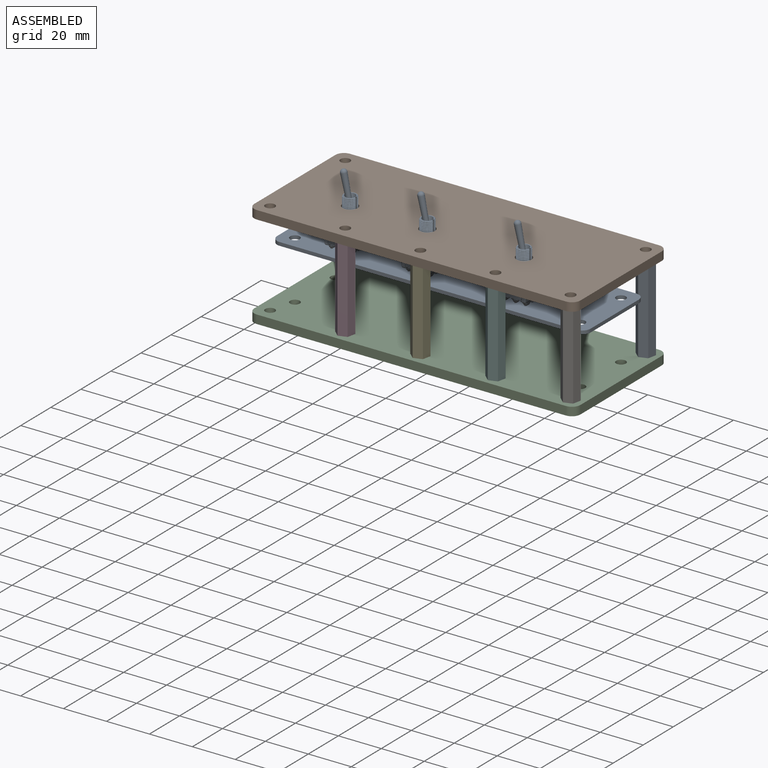
[diagram: assembled view]
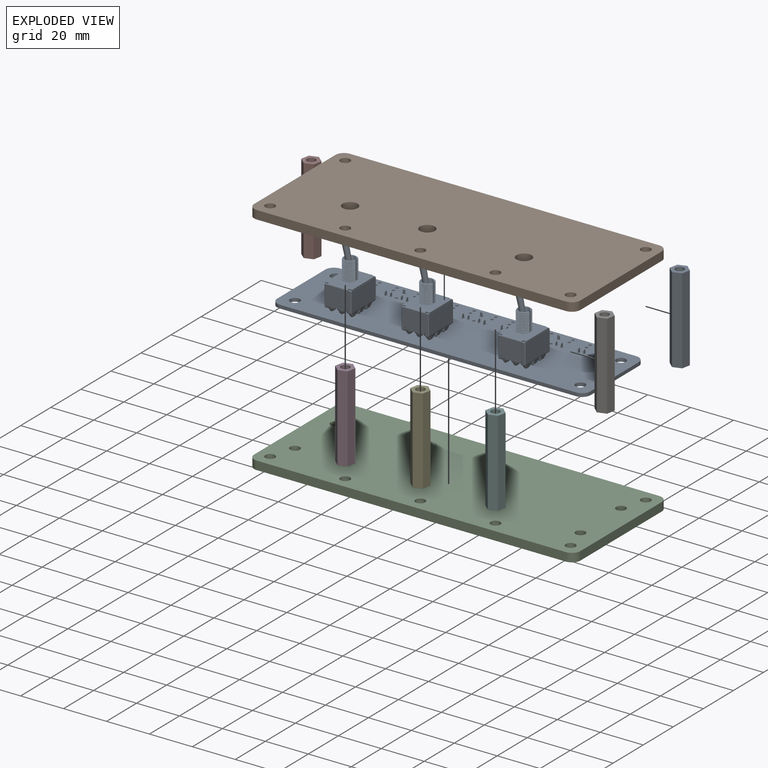
[diagram: exploded view]
GUIDED TOUR — FREECAD ASSEMBLY "Casing"

This assembly has 9 components, labeled P0..P8 below (a component is one placed body or linked part; the same part can appear more than once), held together by 0 modeled joints plus 13 derived contact edges. A joint is a constraint between two components; its type names the relative motion it leaves free:
  CONTACT — a derived adjacency edge — the two components touch in the source model (clearance under 2% of the assembly's diagonal); it is measured from the geometry, not a modeled constraint.
Axis/direction vectors are unit vectors and 'through' points are millimeter coordinates, both in the assembly's world frame.

MATES
  1. CONTACT "contact_0_1": P0 <-> P1, contact direction (0.000, 0.000, 1.000) through (28.45, 25.65, 18.52) mm (derived from contact, not a modeled constraint)
  2. CONTACT "contact_1_3": P1 <-> P3, contact direction (0.000, 0.000, -1.000) through (43.00, 6.73, 14.50) mm (derived from contact, not a modeled constraint)
  3. CONTACT "contact_1_4": P1 <-> P4, contact direction (0.000, 0.000, -1.000) through (77.48, 7.52, 14.50) mm (derived from contact, not a modeled constraint)
  4. CONTACT "contact_1_5": P1 <-> P5, contact direction (0.000, 0.000, -1.000) through (112.48, 7.52, 14.50) mm (derived from contact, not a modeled constraint)
  5. CONTACT "contact_1_6": P1 <-> P6, contact direction (1.000, 0.000, 0.000) through (148.11, 6.21, 14.50) mm (derived from contact, not a modeled constraint)
  6. CONTACT "contact_1_7": P1 <-> P7, contact direction (-1.000, 0.000, 0.000) through (7.15, 57.79, 14.50) mm (derived from contact, not a modeled constraint)
  7. CONTACT "contact_1_8": P1 <-> P8, contact direction (1.000, 0.000, 0.000) through (148.11, 56.21, 14.50) mm (derived from contact, not a modeled constraint)
  8. CONTACT "contact_2_3": P2 <-> P3, contact direction (0.000, 0.000, 1.000) through (43.00, 6.73, -25.50) mm (derived from contact, not a modeled constraint)
  9. CONTACT "contact_2_4": P2 <-> P4, contact direction (0.000, 0.000, 1.000) through (77.15, 7.79, -25.50) mm (derived from contact, not a modeled constraint)
  10. CONTACT "contact_2_5": P2 <-> P5, contact direction (0.000, 0.000, 1.000) through (112.15, 7.79, -25.50) mm (derived from contact, not a modeled constraint)
  11. CONTACT "contact_2_6": P2 <-> P6, contact direction (1.000, 0.000, 0.000) through (144.19, 4.89, -25.50) mm (derived from contact, not a modeled constraint)
  12. CONTACT "contact_2_7": P2 <-> P7, contact direction (-1.000, 0.000, 0.000) through (7.15, 57.79, -25.50) mm (derived from contact, not a modeled constraint)
  13. CONTACT "contact_2_8": P2 <-> P8, contact direction (0.000, 0.000, 1.000) through (144.19, 54.89, -25.50) mm (derived from contact, not a modeled constraint)

ASSEMBLY ORDER
  1. P0 — the base component [order verified]
  2. P1 [order verified]
  3. P8 [order verified]
  4. P7 [order verified]
  5. P6 [order verified]
  6. P5 [order verified]
  7. P4 [order verified]
  8. P3 [order verified]
  9. P2 [order verified]
Order-tag legend:
  [order verified] — this step's position reverses a verified removal order: the component was checked to insert without passing through the ones already placed.

Of the 9 components, 9 carry a construction recipe — the FreeCAD feature program (sketches with constraints, then the solid features that consume them) that regenerates the part from scratch, quoted from this document or from the linked companion document it references; the rest are supplied as boundary geometry only. The tour below walks the components in assembly order: each is shown spotlighted twice — in the assembled view, then in the exploded view, where a leader line traces a displaced component back to its assembled socket (components that stay in place when exploded have no leader line; saturated green if recipe-attached, orange if geometry-only; every other component desaturated gray) — followed by its recipe or geometry summary and the mates that hold it.
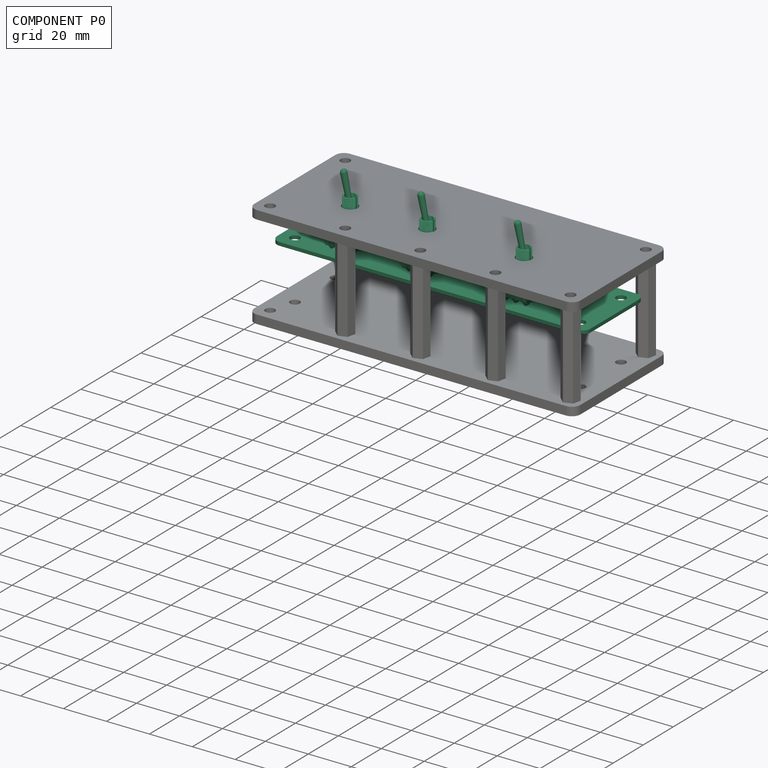
[diagram: component P0 — assembled]
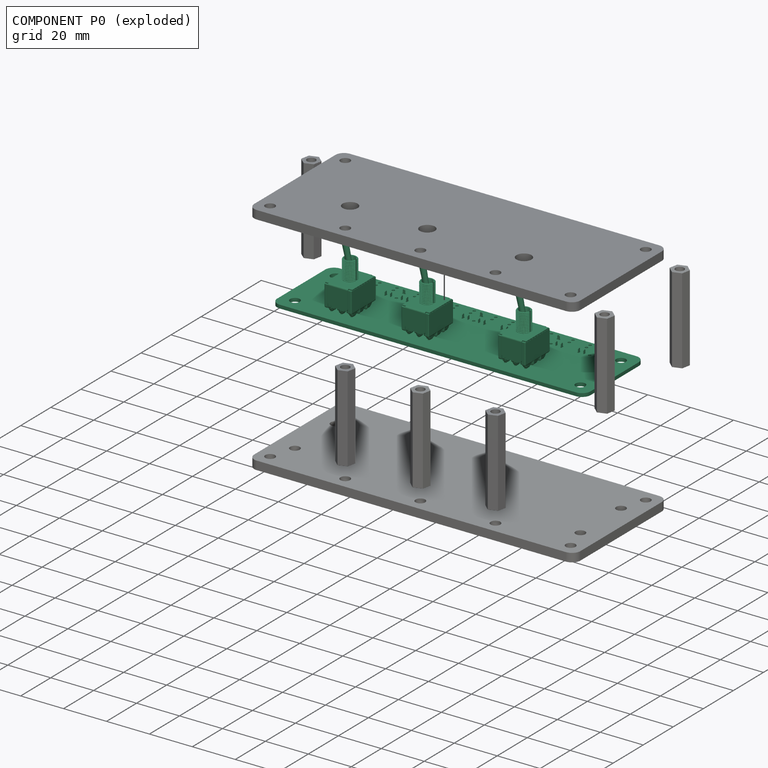
[diagram: component P0 — exploded]
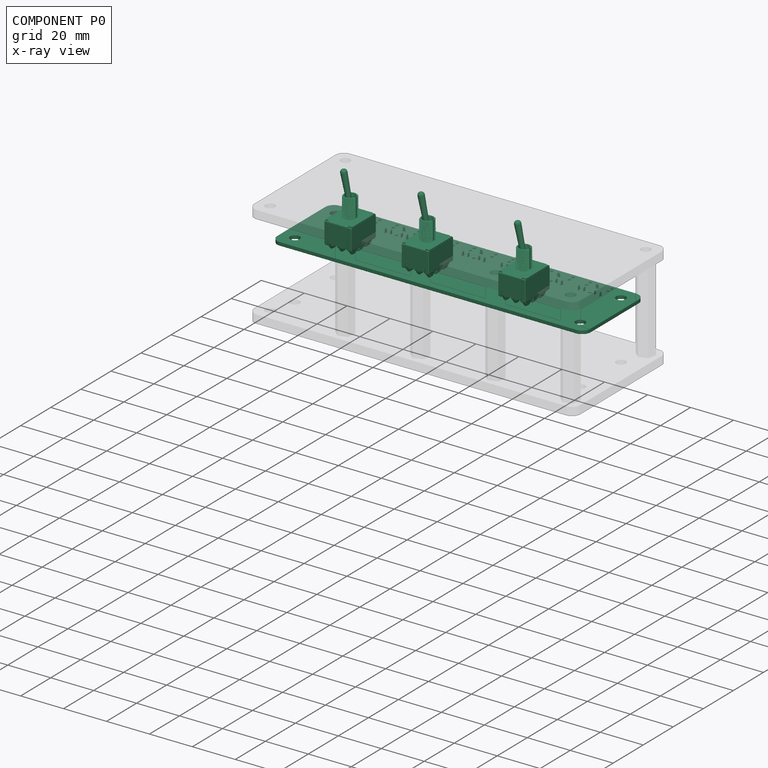
[diagram: component P0 — x-ray view]
COMPONENT P0 — recipe-attached ("PCB", modeled in this document).
Held by: resting contact with P1 (derived edge).
Construction recipe (the document's own serialized feature program — sketch geometry with constraints, then the solid features built on it; lengths are millimeters unless a unit is written):

FEATURE [PartDesign::Body] Body001
  Origin = -> Origin022
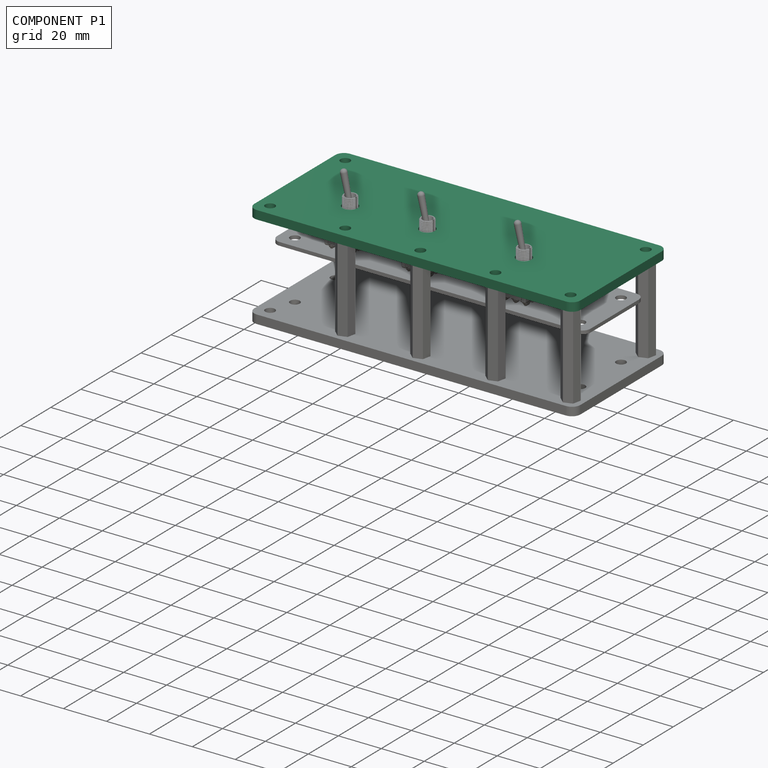
[diagram: component P1 — assembled]
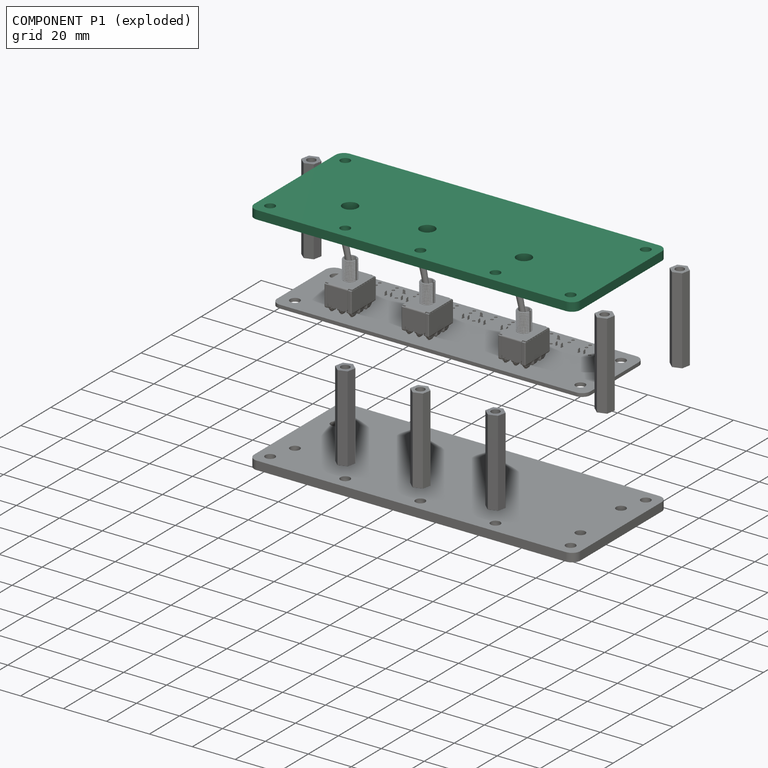
[diagram: component P1 — exploded]
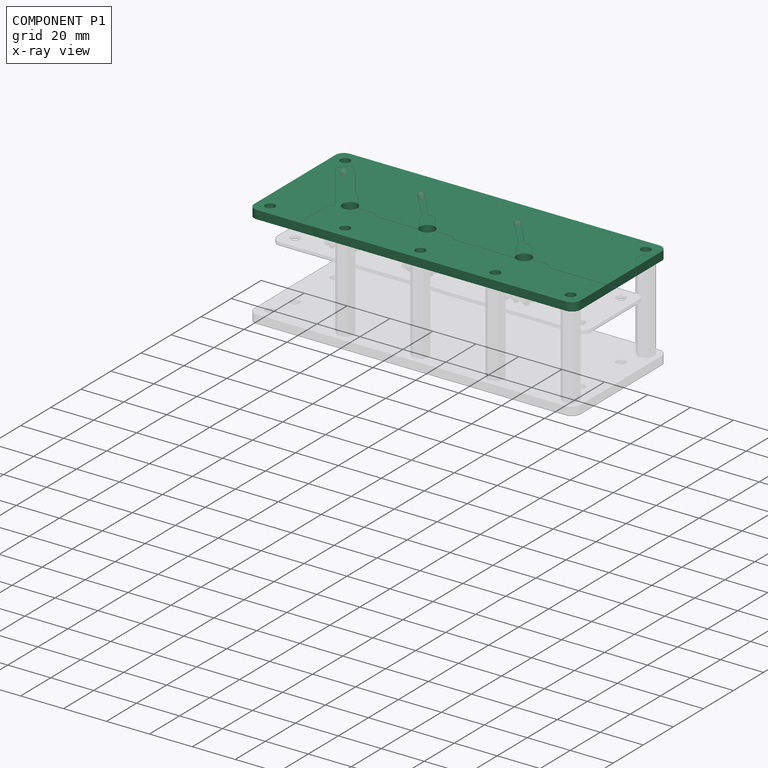
[diagram: component P1 — x-ray view]
COMPONENT P1 — recipe-attached ("Top_Plate", modeled in this document).
Held by: resting contact with P0 (derived edge); resting contact with P3 (derived edge); resting contact with P4 (derived edge); resting contact with P5 (derived edge); resting contact with P6 (derived edge); resting contact with P7 (derived edge); resting contact with P8 (derived edge).
Construction recipe (the document's own serialized feature program — sketch geometry with constraints, then the solid features built on it; lengths are millimeters unless a unit is written):

FEATURE [Sketcher::SketchObject] Sketch
  FullyConstrained = true
  MapMode = 5
  Support = -> [XY_Plane011]
  sketch-geometry (20):
    g0: LineSegment StartX=1.24452e-11 StartY=58 StartZ=0 EndX=1.24452e-11 EndY=4 EndZ=0
    g1: Circle CenterX=6 CenterY=56 CenterZ=0 NormalX=0 NormalY=0 NormalZ=1 AngleXU=0 Radius=2.25
    g2: LineSegment StartX=4 StartY=62 StartZ=0 EndX=148 EndY=62 EndZ=0
    g3: ArcOfCircle CenterX=4 CenterY=58 CenterZ=0 NormalX=0 NormalY=0 NormalZ=1 AngleXU=0 Radius=4 StartAngle=1.5708 EndAngle=3.14159
    g4: Circle CenterX=6 CenterY=6 CenterZ=0 NormalX=0 NormalY=0 NormalZ=1 AngleXU=0 Radius=2.25
    g5: LineSegment StartX=4 StartY=0 StartZ=0 EndX=148 EndY=0 EndZ=0
    g6: ArcOfCircle CenterX=4 CenterY=4 CenterZ=0 NormalX=0 NormalY=0 NormalZ=1 AngleXU=0 Radius=4 StartAngle=3.14159 EndAngle=4.71239
    g7: LineSegment StartX=152 StartY=58 StartZ=0 EndX=152 EndY=4 EndZ=0
    g8: ArcOfCircle CenterX=148 CenterY=58 CenterZ=0 NormalX=0 NormalY=0 NormalZ=1 AngleXU=0 Radius=4 StartAngle=7e-16 EndAngle=1.5708
    g9: ArcOfCircle CenterX=148 CenterY=4 CenterZ=0 NormalX=0 NormalY=0 NormalZ=1 AngleXU=0 Radius=4 StartAngle=4.71239 EndAngle=6.28319
    g10: Circle CenterX=146 CenterY=56 CenterZ=0 NormalX=0 NormalY=0 NormalZ=1 AngleXU=0 Radius=2.25
    g11: Circle CenterX=146 CenterY=6 CenterZ=0 NormalX=0 NormalY=0 NormalZ=1 AngleXU=0 Radius=2.25
    g12: Circle CenterX=76 CenterY=6 CenterZ=0 NormalX=0 NormalY=0 NormalZ=1 AngleXU=0 Radius=2.25
    g13: Circle CenterX=41 CenterY=6 CenterZ=0 NormalX=0 NormalY=0 NormalZ=1 AngleXU=0 Radius=2.25
    g14: Circle CenterX=111 CenterY=6 CenterZ=0 NormalX=0 NormalY=0 NormalZ=1 AngleXU=0 Radius=2.25
    g15: Circle CenterX=31 CenterY=23.5 CenterZ=0 NormalX=0 NormalY=0 NormalZ=1 AngleXU=0 Radius=3.5
    g16: Circle CenterX=67 CenterY=23.5 CenterZ=0 NormalX=0 NormalY=0 NormalZ=1 AngleXU=0 Radius=3.5
    g17: Circle CenterX=112 CenterY=23.5 CenterZ=0 NormalX=0 NormalY=0 NormalZ=1 AngleXU=0 Radius=3.5
    g18: LineSegment StartX=1.24452e-11 StartY=4 StartZ=0 EndX=1.24452e-11 EndY=0 EndZ=0
    g19: LineSegment StartX=4 StartY=0 StartZ=0 EndX=1.24452e-11 EndY=0 EndZ=0
  constraints (54):
    c: Diameter(g1) = 4.5
    c: Vertical(g0)
    c: Horizontal(g2)
    c: Tangent(g2,g3) = 1.5708
    c: Tangent(g0,g3) = -1.5708
    c: Radius(g3) = 4
    c: Diameter(g4) = 4.5
    c: Horizontal(g5)
    c: Tangent(g0,g6) = -1.5708
    c: Tangent(g5,g6) = -1.5708
    c: Radius(g6) = 4
    c: Distance(g4,g0) = 6
    c: DistanceY(g0,g0) = 54
    c: Vertical(g7)
    c: Tangent(g2,g8) = 1.5708
    c: Tangent(g7,g8) = 1.5708
    c: Radius(g8) = 4
    c: Tangent(g7,g9) = 1.5708
    c: Tangent(g5,g9) = -1.5708
    c: Radius(g9) = 4
    c: DistanceX(g2,g2) = 144
    c: Diameter(g10) = 4.5
    c: Diameter(g11) = 4.5
    c: Diameter(g12) = 4.5
    c: Diameter(g13) = 4.5
    c: Diameter(g14) = 4.5
    c: Distance(g15,g0) = 31
    c: Distance(g15,g5) = 23.5
    c: Diameter(g15) = 7
    c: Diameter(g16) = 7
    c: Diameter(g17) = 7
    c: Vertical(g18)
    c: Coincident(g18,g0)
    c: Horizontal(g19)
    c: Coincident(g19,g5)
    c: Coincident(g19,g18)
    c: Coincident(g-1,g18)
    c: Distance(g16,g15) = 36
    c: Distance(g16,g17) = 45
    c: Distance(g13,g12) = 35
    c: Distance(g12,g14) = 35
    c: Distance(g10,g11) = 50
    c: Distance(g1,g4) = 50
    c: Distance(g14,g11) = 35
    c: Distance(g4,g13) = 35
    c: Distance(g10,g1) = 140
    c: Vertical(g1,g4)
    c: Horizontal(g4,g13)
    c: Horizontal(g12,g13)
    c: Horizontal(g12,g14)
    c: Horizontal(g11,g14)
    c: Horizontal(g16,g15)
    c: Horizontal(g16,g17)
    c: Distance(g4,g5) = 6
FEATURE [PartDesign::Pad] Pad
  Direction = (1,1,1)
  Length = 4
  Length2 = 100
  Profile = -> Sketch
  Type = 0
FEATURE [PartDesign::Body] Body  label="Top_Plate"
  Group = -> [Sketch,Pad]
  Origin = -> Origin011
  Placement = pos=(0,0,14.5) rot=(0,0,1;0rad)
  Tip = -> Pad
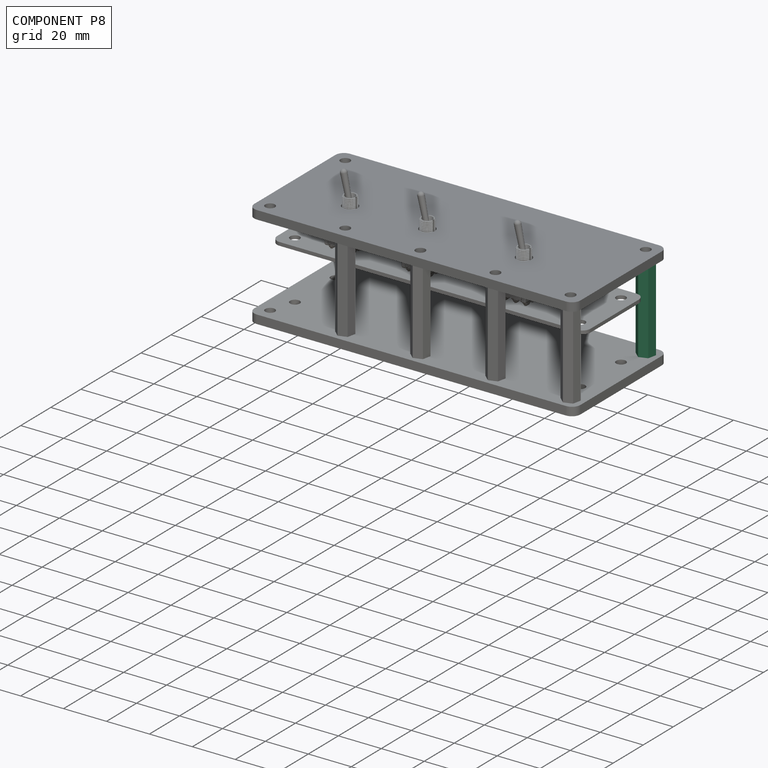
[diagram: component P8 — assembled]
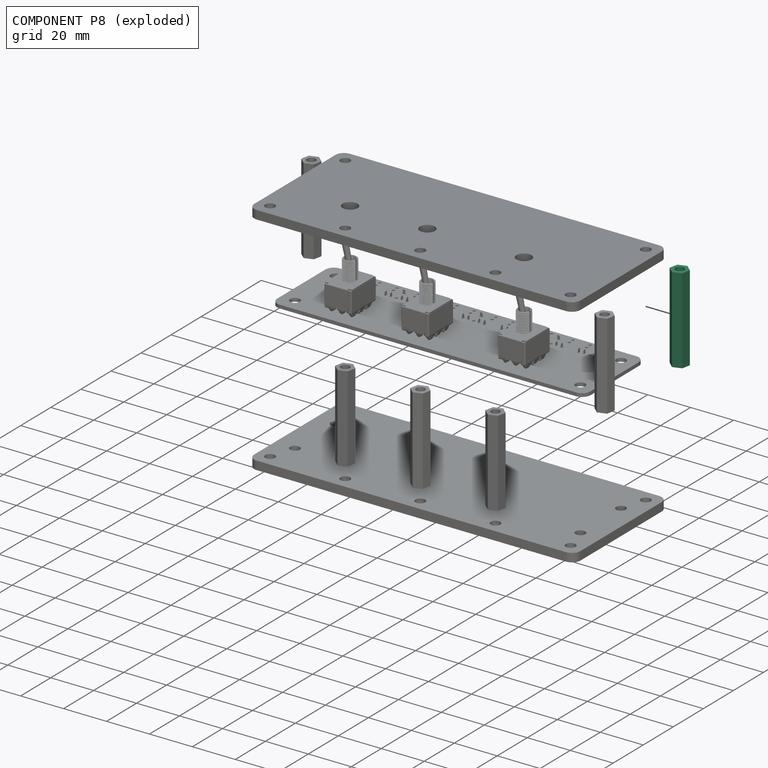
[diagram: component P8 — exploded]
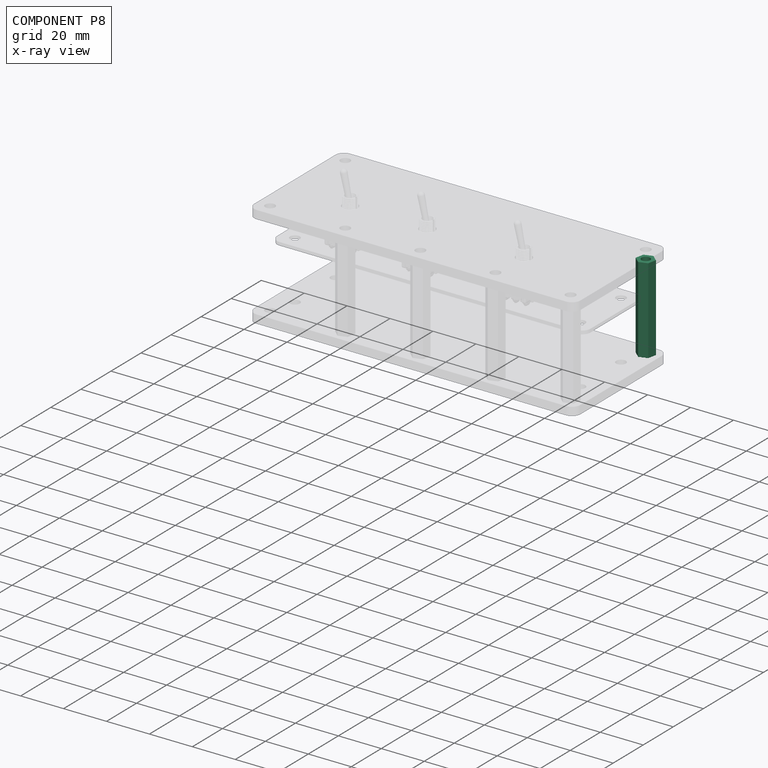
[diagram: component P8 — x-ray view]
COMPONENT P8 — same part as P3; its construction recipe is shown at P3.
Held by: resting contact with P1 (derived edge); resting contact with P2 (derived edge).
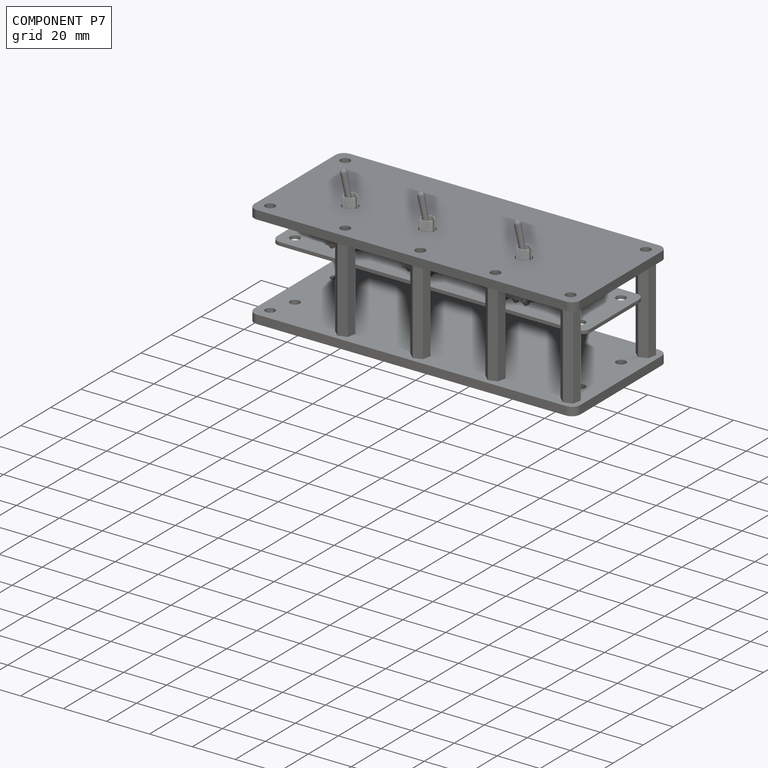
[diagram: component P7 — assembled]
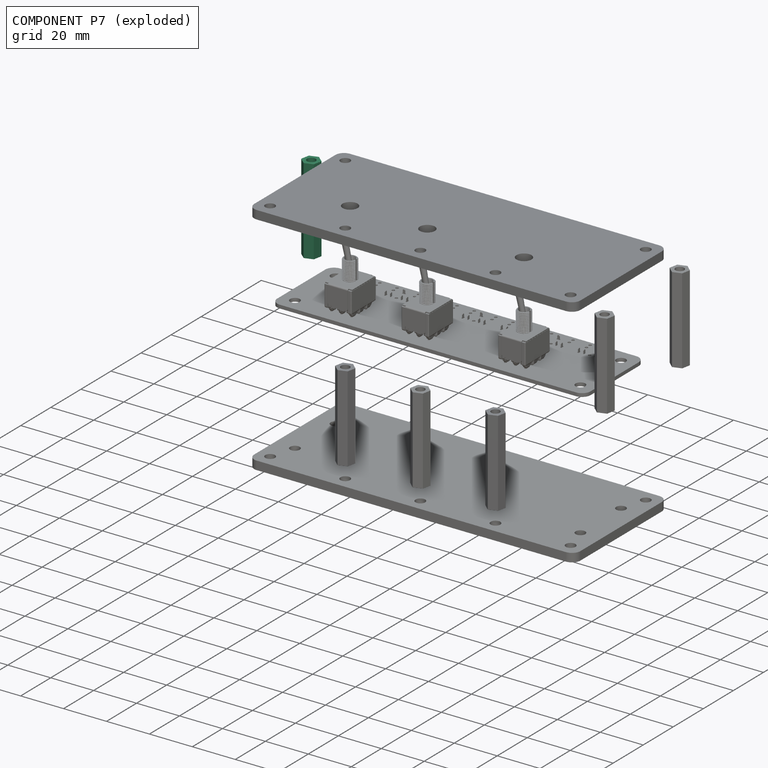
[diagram: component P7 — exploded]
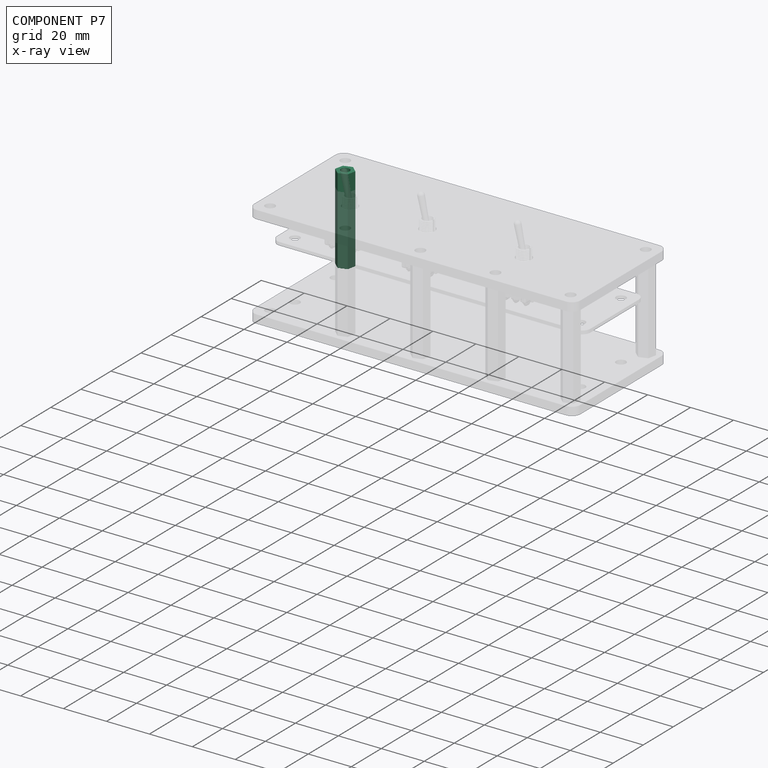
[diagram: component P7 — x-ray view]
COMPONENT P7 — same part as P3; its construction recipe is shown at P3.
Held by: resting contact with P1 (derived edge); resting contact with P2 (derived edge).
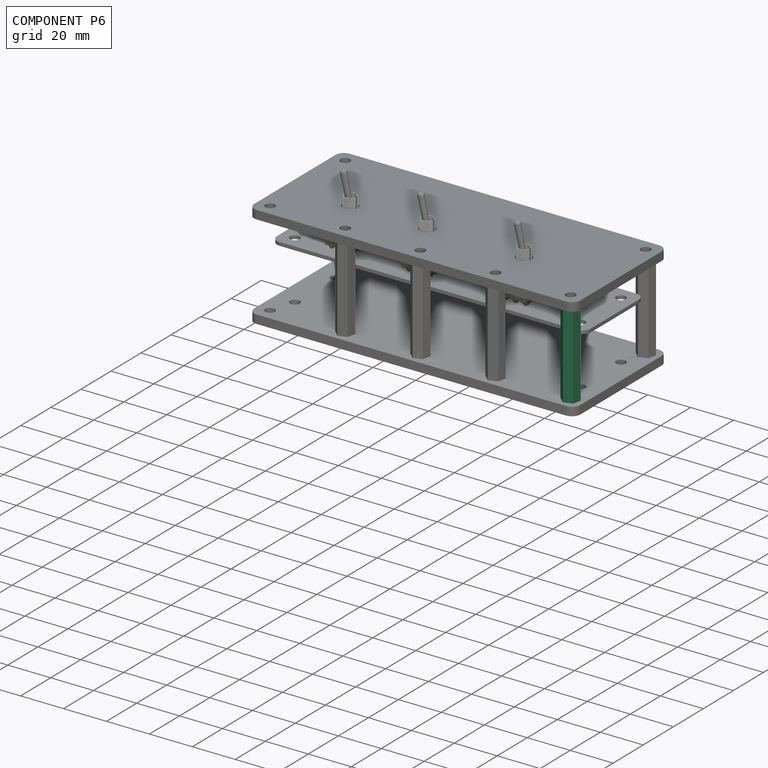
[diagram: component P6 — assembled]
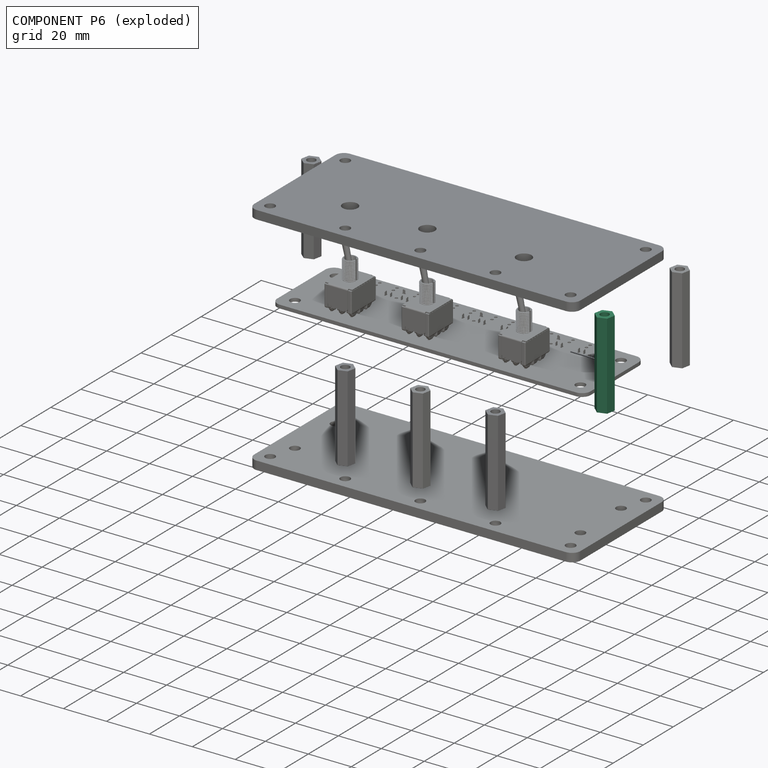
[diagram: component P6 — exploded]
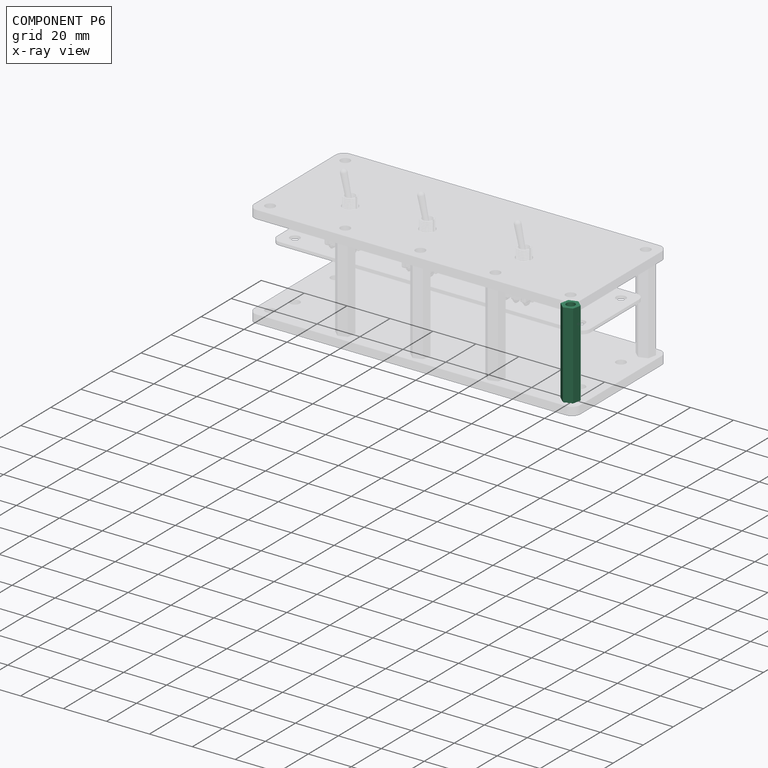
[diagram: component P6 — x-ray view]
COMPONENT P6 — same part as P3; its construction recipe is shown at P3.
Held by: resting contact with P1 (derived edge); resting contact with P2 (derived edge).
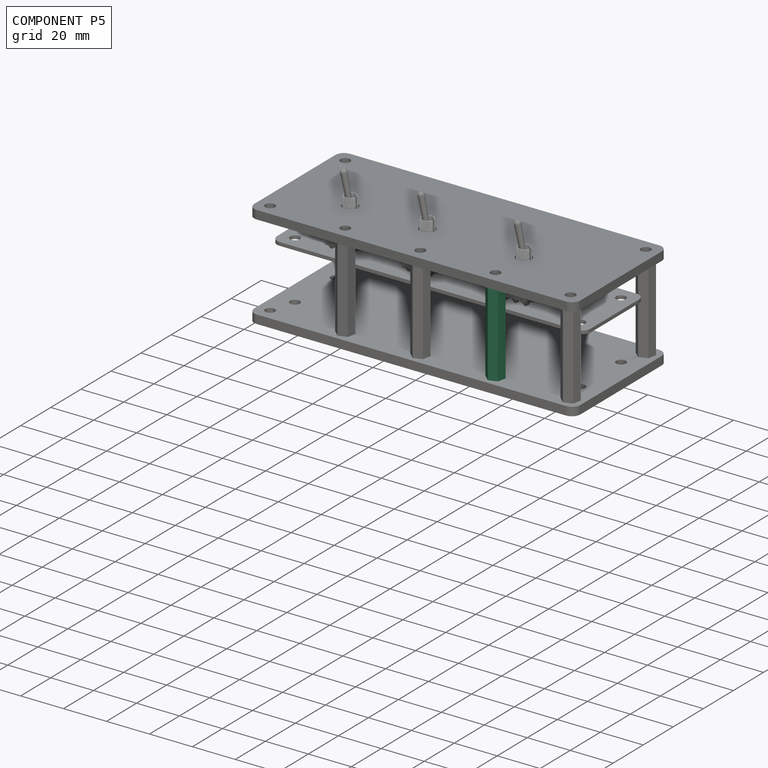
[diagram: component P5 — assembled]
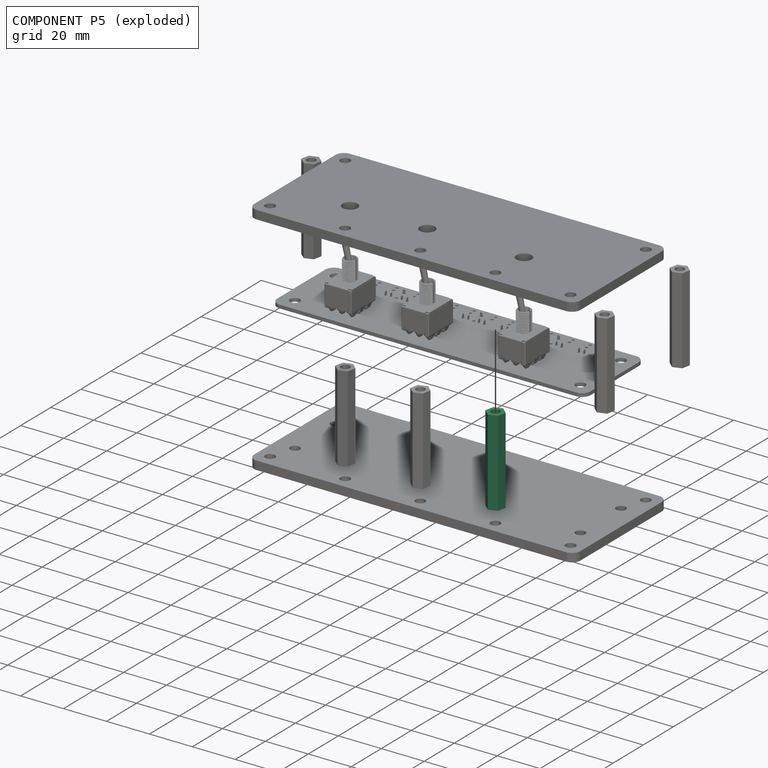
[diagram: component P5 — exploded]
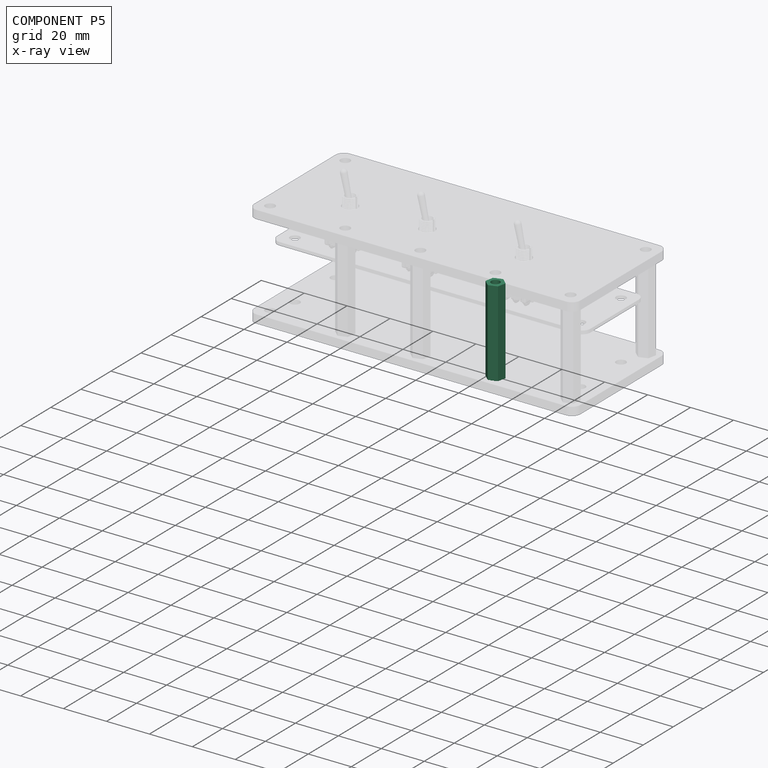
[diagram: component P5 — x-ray view]
COMPONENT P5 — same part as P3; its construction recipe is shown at P3.
Held by: resting contact with P1 (derived edge); resting contact with P2 (derived edge).
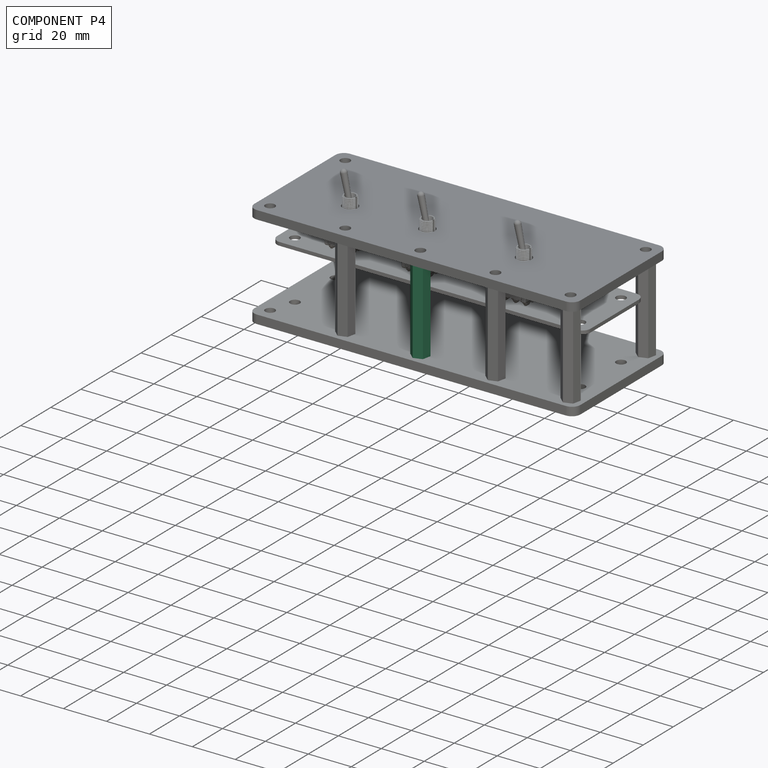
[diagram: component P4 — assembled]
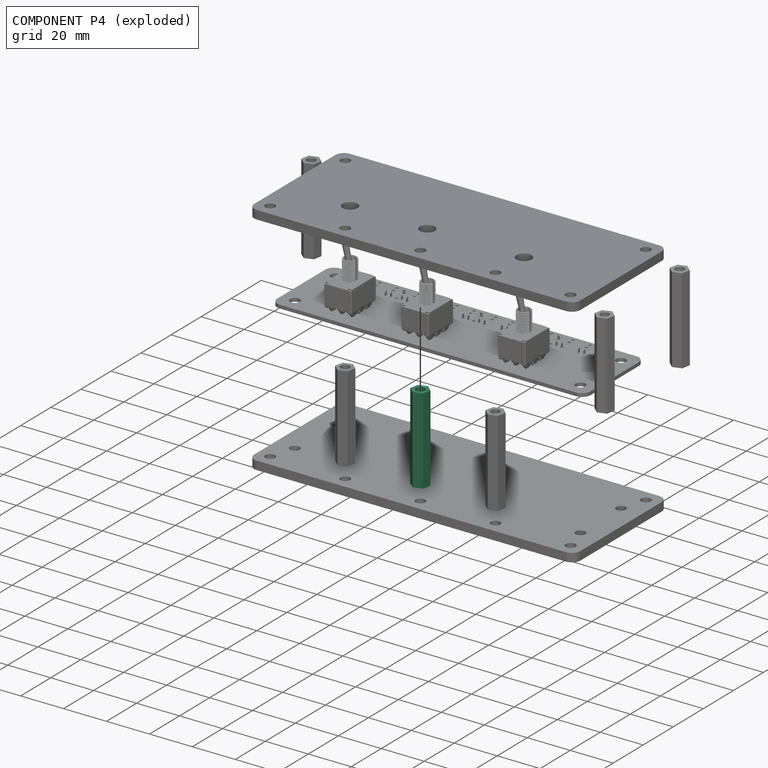
[diagram: component P4 — exploded]
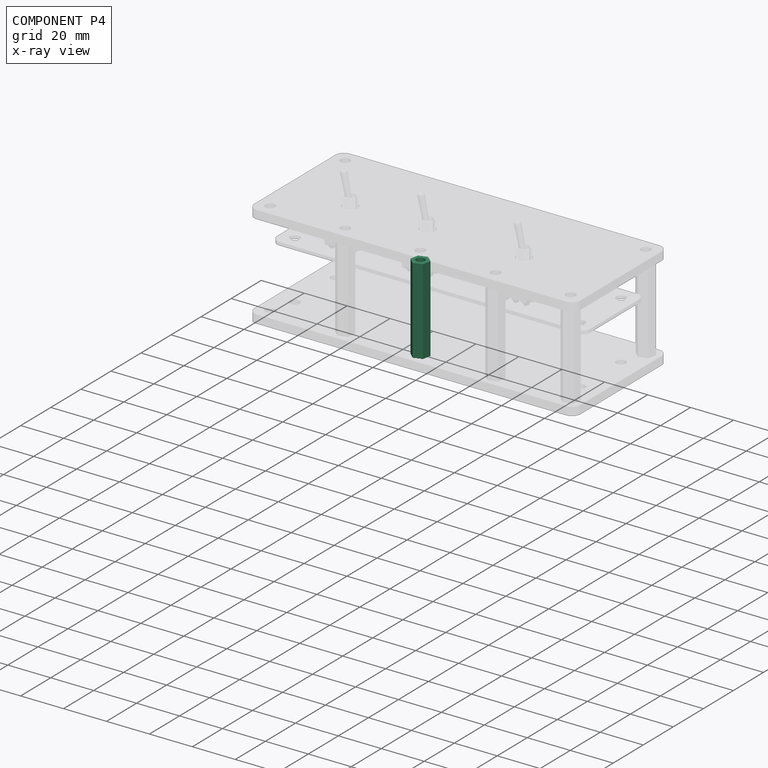
[diagram: component P4 — x-ray view]
COMPONENT P4 — same part as P3; its construction recipe is shown at P3.
Held by: resting contact with P1 (derived edge); resting contact with P2 (derived edge).
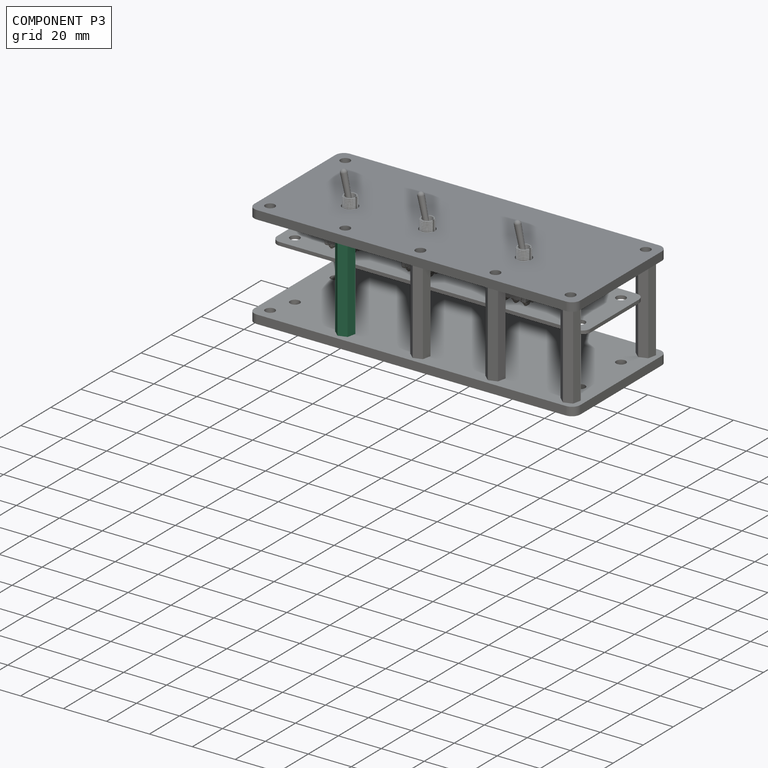
[diagram: component P3 — assembled]
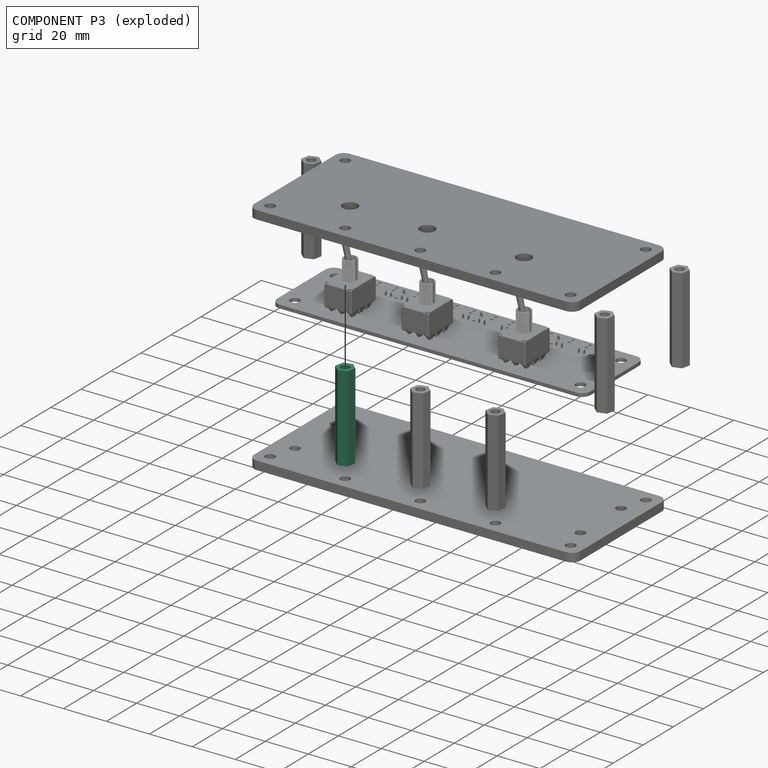
[diagram: component P3 — exploded]
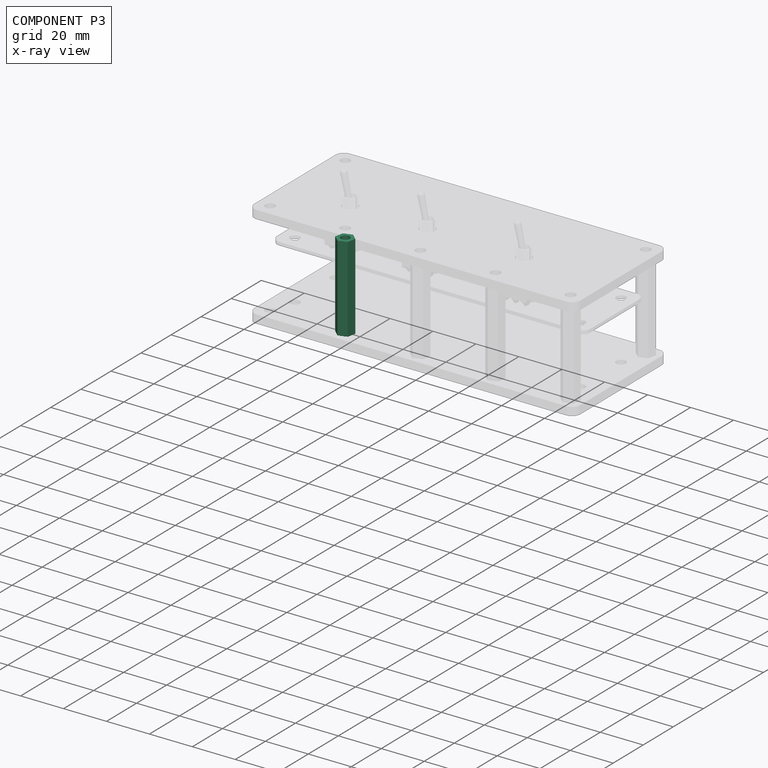
[diagram: component P3 — x-ray view]
COMPONENT P3 — recipe-attached ("Hex_Standoff_2", modeled in this document).
Held by: resting contact with P1 (derived edge); resting contact with P2 (derived edge).
Construction recipe (the document's own serialized feature program — sketch geometry with constraints, then the solid features built on it; lengths are millimeters unless a unit is written):

FEATURE [Sketcher::SketchObject] Sketch002
  FullyConstrained = false
  MapMode = 5
  Support = -> [XY_Plane024]
  sketch-geometry (8):
    g0: LineSegment StartX=0.82718 StartY=3.9559 StartZ=0 EndX=-3.01232 EndY=2.69431 EndZ=0
    g1: LineSegment StartX=-3.01232 StartY=2.69431 StartZ=0 EndX=-3.8395 EndY=-1.26159 EndZ=0
    g2: LineSegment StartX=-3.8395 StartY=-1.26159 StartZ=0 EndX=-0.82718 EndY=-3.9559 EndZ=0
    g3: LineSegment StartX=-0.82718 StartY=-3.9559 StartZ=0 EndX=3.01232 EndY=-2.69431 EndZ=0
    g4: LineSegment StartX=3.01232 StartY=-2.69431 StartZ=0 EndX=3.8395 EndY=1.26159 EndZ=0
    g5: LineSegment StartX=3.8395 StartY=1.26159 StartZ=0 EndX=0.82718 EndY=3.9559 EndZ=0
    g6: Circle CenterX=-9.8e-15 CenterY=4.12e-14 CenterZ=0 NormalX=0 NormalY=0 NormalZ=1 AngleXU=0 Radius=4.04145
    g7: Circle CenterX=-9.8e-15 CenterY=4.12e-14 CenterZ=0 NormalX=0 NormalY=0 NormalZ=1 AngleXU=0 Radius=2
  constraints (17):
    c: Coincident(g0,g1)
    c: Coincident(g1,g2)
    c: Coincident(g2,g3)
    c: Coincident(g3,g4)
    c: Coincident(g4,g5)
    c: Coincident(g5,g0)
    c: Equal(g0, g1-g5) x5
    c: PointOnObject(g0,g6)
    c: PointOnObject(g1,g6)
    c: PointOnObject(g2,g6)
    c: PointOnObject(g3,g6)
    c: PointOnObject(g4,g6)
    c: PointOnObject(g5,g6)
    c: Distance(g6,g2) = 3.5
    c: Diameter(g7) = 4
    c: Coincident(g7,g6)
    c: Coincident(g7,g-1)
FEATURE [PartDesign::Pad] Pad002
  Direction = (1,1,1)
  Length = 40
  Length2 = 100
  Profile = -> Sketch002
  Type = 0
FEATURE [PartDesign::Body] Body003  label="Hex_Standoff_1"
  Group = -> [Sketch002,Pad002]
  Origin = -> Origin024
  Placement = pos=(6,6,-25.5) rot=(0,0,1;0rad)
  Tip = -> Pad002
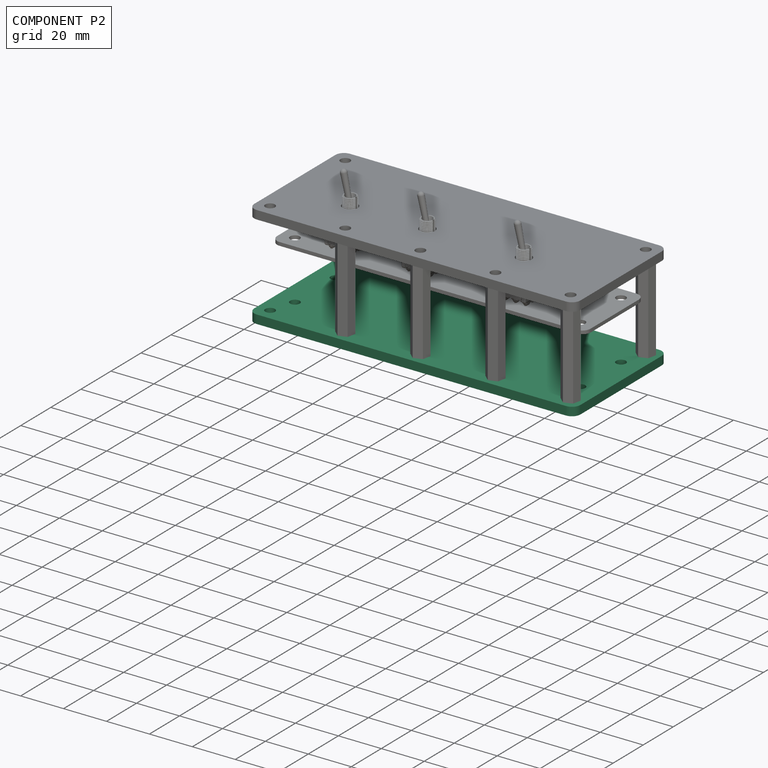
[diagram: component P2 — assembled]
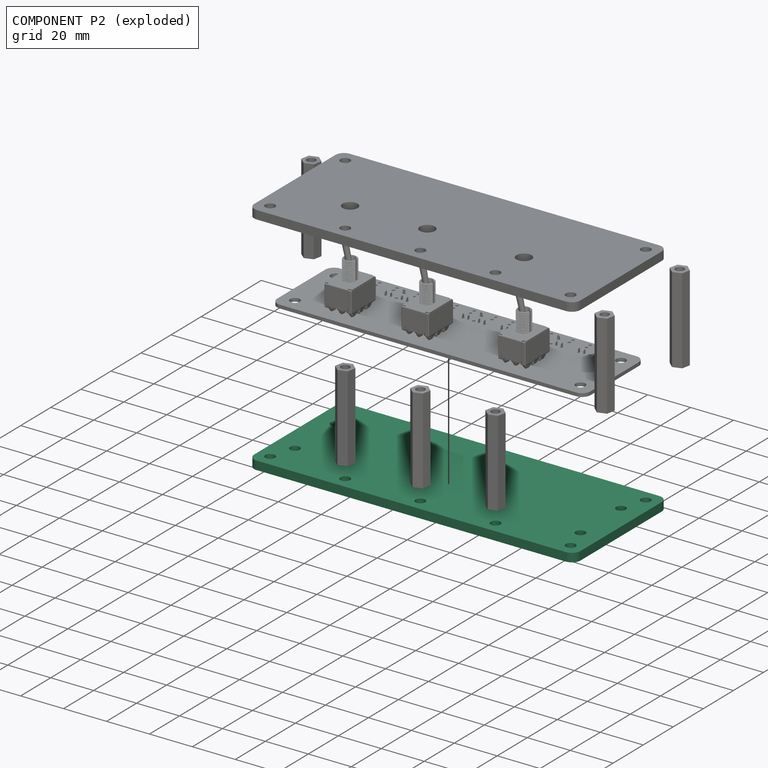
[diagram: component P2 — exploded]
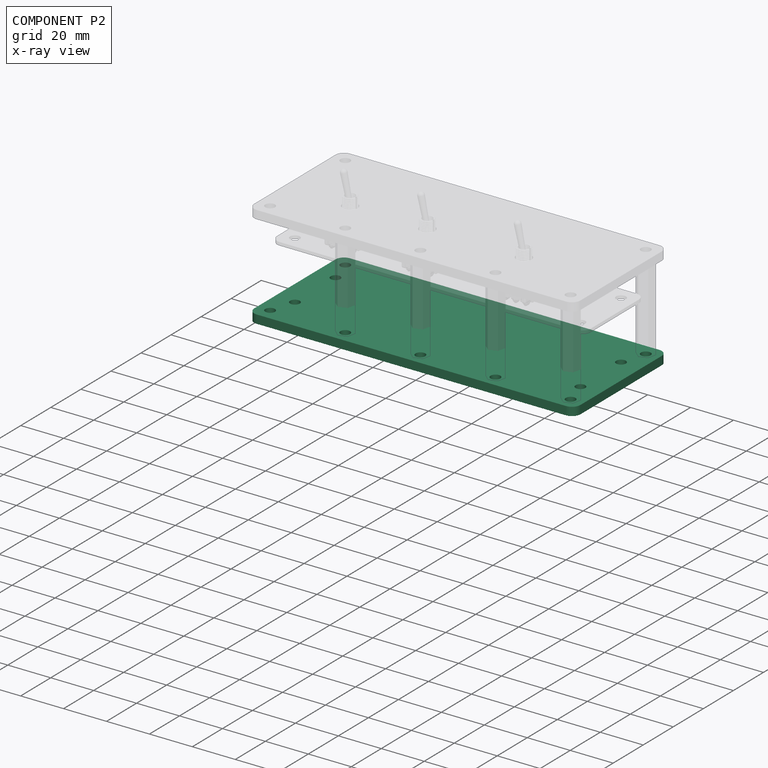
[diagram: component P2 — x-ray view]
COMPONENT P2 — recipe-attached ("Bottom_Plate", modeled in this document).
Held by: resting contact with P3 (derived edge); resting contact with P4 (derived edge); resting contact with P5 (derived edge); resting contact with P6 (derived edge); resting contact with P7 (derived edge); resting contact with P8 (derived edge).
Construction recipe (the document's own serialized feature program — sketch geometry with constraints, then the solid features built on it; lengths are millimeters unless a unit is written):

FEATURE [Sketcher::SketchObject] Sketch001
  FullyConstrained = true
  MapMode = 5
  Support = -> [XY_Plane023]
  sketch-geometry (21):
    g0: LineSegment StartX=0 StartY=58 StartZ=0 EndX=0 EndY=4 EndZ=0
    g1: Circle CenterX=6 CenterY=56 CenterZ=0 NormalX=0 NormalY=0 NormalZ=1 AngleXU=0 Radius=2.25
    g2: LineSegment StartX=4 StartY=62 StartZ=0 EndX=148 EndY=62 EndZ=0
    g3: ArcOfCircle CenterX=4 CenterY=58 CenterZ=0 NormalX=0 NormalY=0 NormalZ=1 AngleXU=0 Radius=4 StartAngle=1.5708 EndAngle=3.14159
    g4: Circle CenterX=6 CenterY=6 CenterZ=0 NormalX=0 NormalY=0 NormalZ=1 AngleXU=0 Radius=2.25
    g5: LineSegment StartX=4 StartY=0 StartZ=0 EndX=148 EndY=0 EndZ=0
    g6: ArcOfCircle CenterX=4 CenterY=4 CenterZ=0 NormalX=0 NormalY=0 NormalZ=1 AngleXU=0 Radius=4 StartAngle=3.14159 EndAngle=4.71239
    g7: LineSegment StartX=152 StartY=58 StartZ=0 EndX=152 EndY=4 EndZ=0
    g8: ArcOfCircle CenterX=148 CenterY=58 CenterZ=0 NormalX=0 NormalY=0 NormalZ=1 AngleXU=0 Radius=4 StartAngle=0 EndAngle=1.5708
    g9: ArcOfCircle CenterX=148 CenterY=4 CenterZ=0 NormalX=0 NormalY=0 NormalZ=1 AngleXU=0 Radius=4 StartAngle=4.71239 EndAngle=6.28319
    g10: Circle CenterX=146 CenterY=56 CenterZ=0 NormalX=0 NormalY=0 NormalZ=1 AngleXU=0 Radius=2.25
    g11: Circle CenterX=146 CenterY=6 CenterZ=0 NormalX=0 NormalY=0 NormalZ=1 AngleXU=0 Radius=2.25
    g12: Circle CenterX=76 CenterY=6 CenterZ=0 NormalX=0 NormalY=0 NormalZ=1 AngleXU=0 Radius=2.25
    g13: Circle CenterX=41 CenterY=6 CenterZ=0 NormalX=0 NormalY=0 NormalZ=1 AngleXU=0 Radius=2.25
    g14: Circle CenterX=111 CenterY=6 CenterZ=0 NormalX=0 NormalY=0 NormalZ=1 AngleXU=0 Radius=2.25
    g15: LineSegment StartX=0 StartY=4 StartZ=0 EndX=0 EndY=0 EndZ=0
    g16: LineSegment StartX=4 StartY=0 StartZ=0 EndX=0 EndY=0 EndZ=0
    g17: Circle CenterX=9.5 CenterY=17.5 CenterZ=0 NormalX=0 NormalY=0 NormalZ=1 AngleXU=0 Radius=2.25
    g18: Circle CenterX=9.5 CenterY=44.5 CenterZ=0 NormalX=0 NormalY=0 NormalZ=1 AngleXU=0 Radius=2.25
    g19: Circle CenterX=142.5 CenterY=44.5 CenterZ=0 NormalX=0 NormalY=0 NormalZ=1 AngleXU=0 Radius=2.25
    g20: Circle CenterX=142.5 CenterY=17.5 CenterZ=0 NormalX=0 NormalY=0 NormalZ=1 AngleXU=0 Radius=2.25
  constraints (57):
    c: Diameter(g1) = 4.5
    c: Vertical(g0)
    c: Horizontal(g2)
    c: Tangent(g2,g3) = 1.5708
    c: Tangent(g0,g3) = -1.5708
    c: Radius(g3) = 4
    c: Diameter(g4) = 4.5
    c: Horizontal(g5)
    c: Tangent(g0,g6) = -1.5708
    c: Tangent(g5,g6) = -1.5708
    c: Radius(g6) = 4
    c: Distance(g4,g5) = 6
    c: Distance(g4,g0) = 6
    c: DistanceY(g0,g0) = 54
    c: Vertical(g7)
    c: Tangent(g2,g8) = 1.5708
    c: Tangent(g7,g8) = 1.5708
    c: Radius(g8) = 4
    c: Tangent(g7,g9) = 1.5708
    c: Tangent(g5,g9) = -1.5708
    c: Radius(g9) = 4
    c: DistanceX(g2,g2) = 144
    c: Diameter(g10) = 4.5
    c: Diameter(g11) = 4.5
    c: Diameter(g12) = 4.5
    c: Diameter(g13) = 4.5
    c: Diameter(g14) = 4.5
    c: Vertical(g15)
    c: Coincident(g15,g0)
    c: Horizontal(g16)
    c: Coincident(g16,g5)
    c: Coincident(g15,g16)
    c: Coincident(g-1,g15)
    c: Diameter(g17) = 4.5
    c: Distance(g17,g0) = 9.5
    c: Distance(g17,g5) = 17.5
    c: Diameter(g18) = 4.5
    c: Diameter(g19) = 4.5
    c: Diameter(g20) = 4.5
    c: Distance(g4,g13) = 35
    c: Distance(g12,g13) = 35
    c: Horizontal(g4,g13)
    c: Horizontal(g13,g12)
    c: Distance(g12,g14) = 35
    c: Horizontal(g12,g14)
    c: Distance(g11,g14) = 35
    c: Horizontal(g11,g14)
    c: Distance(g10,g11) = 50
    c: Vertical(g10,g11)
    c: Distance(g20,g17) = 133
    c: Horizontal(g20,g17)
    c: Distance(g19,g20) = 27
    c: Vertical(g19,g20)
    c: Vertical(g18,g17)
    c: Horizontal(g18,g19)
    c: Vertical(g4,g1)
    c: Horizontal(g1,g10)
FEATURE [PartDesign::Pad] Pad001
  Direction = (1,1,1)
  Length = 4
  Length2 = 100
  Profile = -> Sketch001
  Type = 0
FEATURE [PartDesign::Body] Body002  label="Bottom_Plate"
  Group = -> [Sketch001,Pad001]
  Origin = -> Origin023
  Placement = pos=(0,0,-29.5) rot=(0,0,1;0rad)
  Tip = -> Pad001
PROVENANCE & LICENSES
Assembly and component geometry: a FreeCAD (.FCStd) document from a public repository crawl; components, placements and joints were extracted with FreeCAD and each solid tessellated.
Construction recipes: the document's own serialized feature recipes (and, for linked parts, the recipes of companion documents from the same project).
License: mit.
Joints: native FreeCAD joints and A2plus constraints are mapped to standard mate types; edges marked 'derived from contact' connect touching components and are measured from the geometry, not modeled.
Verification: 9 of this assembly's 9 components carry a construction recipe (9 from this document itself); the rest are geometry-only. Every component's tessellation passed the extraction mesh gates (mesh-volume checksum against the B-rep where available, bounding-box inflation <= 2%).
Renders: orthographic iso camera (az 35 / el 25); the floor grid conveys scale (grid pitch printed in each image; no ruler). In the exploded view each component is displaced by its stored offset vector: the offsets alone carry the explosion direction (mate normal/axis signs are not orientation cues and do not encode it), and separation distances are assigned per mate-chain, not proportionally to assembly-order depth.
